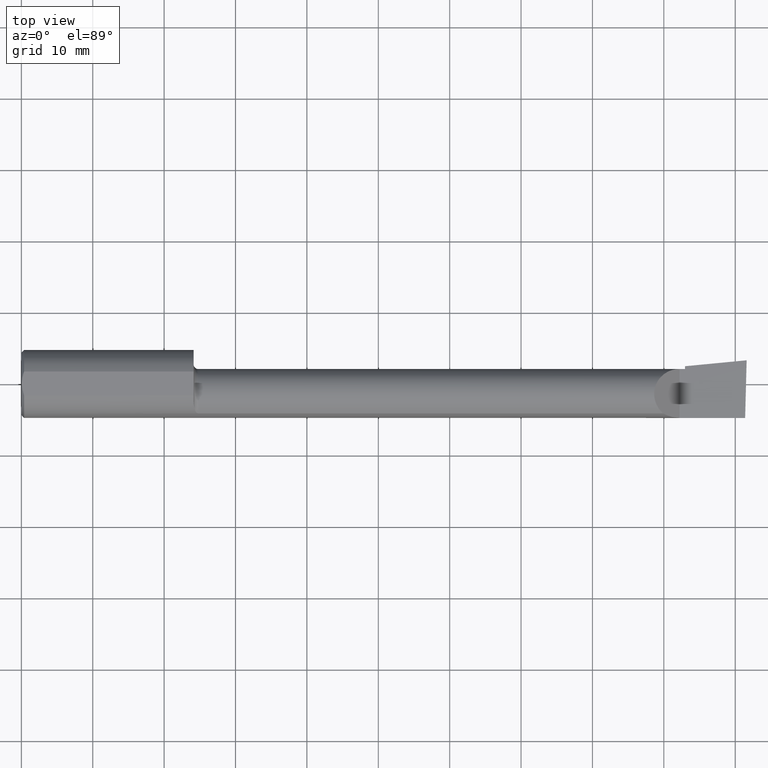
[diagram: clean part render]
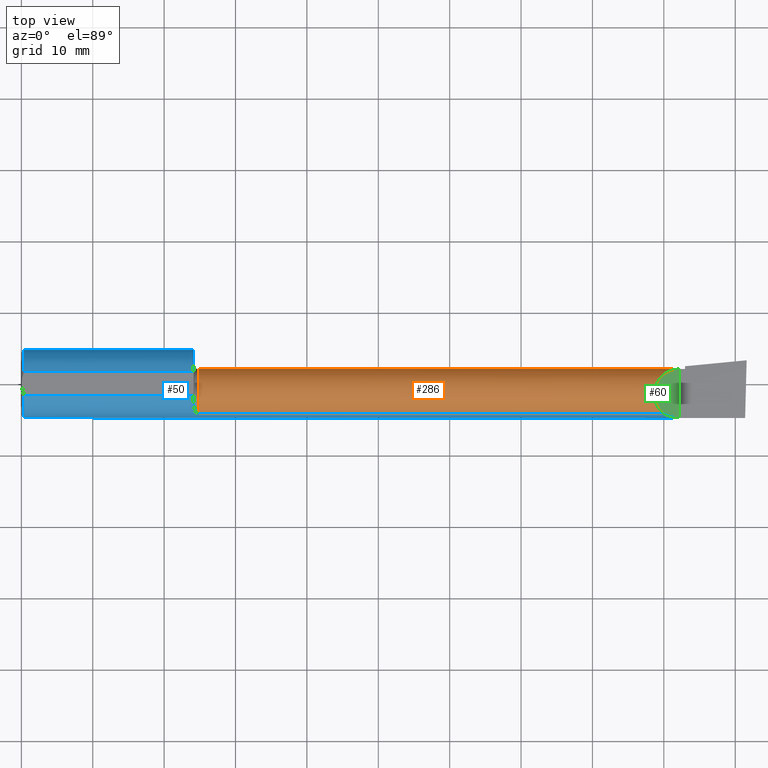
[diagram: same view with three faces highlighted in distinct colors, each labeled with its STEP entity id]
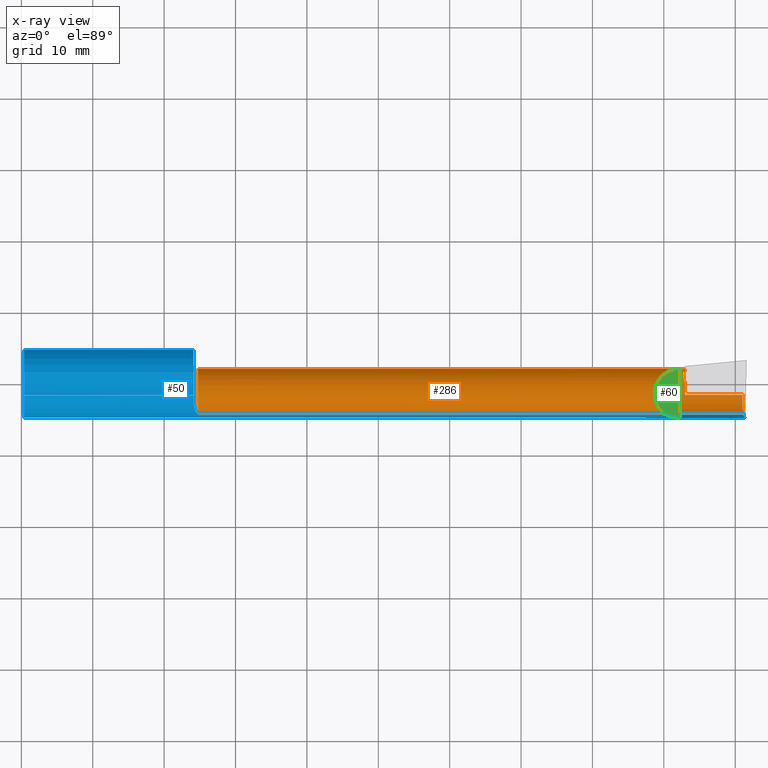
[diagram: x-ray of the same camera — body ghosted, the three highlighted faces saturated]
A machine part, top view with three faces highlighted in distinct colors.
The next image is the same camera in x-ray (body ghosted, the three faces saturated) — at least one of them is partly hidden behind the body in this view.
Their STEP definitions:

[orange] entity #286 — the highlighted cylindrical surface (edge-blend (fillet) strip) has radius 3.5573 mm, axis along (-1, -0, -0).
#5 = ORIENTED_EDGE ( 'NONE', *, *, #168, .F. ) ;
#8 = ORIENTED_EDGE ( 'NONE', *, *, #14, .T. ) ;
#14 = EDGE_CURVE ( 'NONE', #373, #452, #393, .T. ) ;
#21 = VERTEX_POINT ( 'NONE', #387 ) ;
#23 = CARTESIAN_POINT ( 'NONE',  ( 2.317499999999999893, -0.1635956445993030639, 0.09130436773856169530 ) ) ;
#26 = DIRECTION ( 'NONE',  ( -1.000000000000000000, -4.268512490100411279E-18, -0.000000000000000000 ) ) ;
#28 = CARTESIAN_POINT ( 'NONE',  ( 3.659999999999999698, -0.05739999999999999963, 0.000000000000000000 ) ) ;
#33 = CARTESIAN_POINT ( 'NONE',  ( 3.656476415630202759, 0.01361451005324055587, -0.1207110541441177021 ) ) ;
#40 = CARTESIAN_POINT ( 'NONE',  ( 3.659999999999999698, 0.08265000000000022329, 1.790477306702067193E-16 ) ) ;
#41 = CARTESIAN_POINT ( 'NONE',  ( 3.656639924654159657, 0.06539171466162838064, -0.06735725908305589815 ) ) ;
#49 = VERTEX_POINT ( 'NONE', #40 ) ;
#52 = CARTESIAN_POINT ( 'NONE',  ( 2.317499999999999893, -0.1635956445993030639, -0.09130436773856169530 ) ) ;
#54 = AXIS2_PLACEMENT_3D ( 'NONE', #631, #336, #234 ) ;
#66 = DIRECTION ( 'NONE',  ( 1.000000000000000000, 4.268512490100411279E-18, 0.000000000000000000 ) ) ;
#75 = CARTESIAN_POINT ( 'NONE',  ( 0.000000000000000000, -0.05740000000000001351, 0.000000000000000000 ) ) ;
#82 = CARTESIAN_POINT ( 'NONE',  ( 3.977925907309857845, -0.1365595166907235813, -0.1227499502647107499 ) ) ;
#101 = VERTEX_POINT ( 'NONE', #346 ) ;
#103 = EDGE_CURVE ( 'NONE', #118, #564, #325, .T. ) ;
#108 = VERTEX_POINT ( 'NONE', #183 ) ;
#113 =( BOUNDED_CURVE ( )  B_SPLINE_CURVE ( 3, ( #635, #385, #188, #585 ),
 .UNSPECIFIED., .F., .F. ) 
 B_SPLINE_CURVE_WITH_KNOTS ( ( 4, 4 ),
 ( 0.4889314207010929114, 1.042347087928814364 ),
 .UNSPECIFIED. ) 
 CURVE ( )  GEOMETRIC_REPRESENTATION_ITEM ( )  RATIONAL_B_SPLINE_CURVE ( ( 1.000000000000000000, 0.9746400248777661313, 0.9746400248777661313, 1.000000000000000000 ) ) 
 REPRESENTATION_ITEM ( '' )  );
#118 = VERTEX_POINT ( 'NONE', #381 ) ;
#124 = EDGE_CURVE ( 'NONE', #470, #637, #551, .T. ) ;
#126 = FACE_OUTER_BOUND ( 'NONE', #360, .T. ) ;
#132 = CARTESIAN_POINT ( 'NONE',  ( 3.977873865042411250, -0.05739999999999999963, -0.1400500000000000633 ) ) ;
#133 = EDGE_CURVE ( 'NONE', #21, #101, #113, .T. ) ;
#137 =( BOUNDED_CURVE ( )  B_SPLINE_CURVE ( 3, ( #616, #167, #186, #525 ),
 .UNSPECIFIED., .F., .F. ) 
 B_SPLINE_CURVE_WITH_KNOTS ( ( 4, 4 ),
 ( 5.422530673488459740, 7.853981633974483678 ),
 .UNSPECIFIED. ) 
 CURVE ( )  GEOMETRIC_REPRESENTATION_ITEM ( )  RATIONAL_B_SPLINE_CURVE ( ( 1.000000000000000000, 0.5651045289226863666, 0.5651045289226863666, 1.000000000000000000 ) ) 
 REPRESENTATION_ITEM ( '' )  );
#138 = CARTESIAN_POINT ( 'NONE',  ( -5.978051742385467392E-19, 0.08264999999999995961, 1.790477306702064235E-16 ) ) ;
#143 = EDGE_CURVE ( 'NONE', #164, #49, #435, .T. ) ;
#146 = CARTESIAN_POINT ( 'NONE',  ( 3.658254417281639803, 0.01401537333401174125, -0.1204743278970654558 ) ) ;
#150 = ORIENTED_EDGE ( 'NONE', *, *, #398, .F. ) ;
#154 = LINE ( 'NONE', #52, #312 ) ;
#164 = VERTEX_POINT ( 'NONE', #197 ) ;
#167 = CARTESIAN_POINT ( 'NONE',  ( 3.421229036482944075, -0.06260079402492414735, 0.2087709635170538203 ) ) ;
#168 = EDGE_CURVE ( 'NONE', #637, #452, #497, .T. ) ;
#172 = ORIENTED_EDGE ( 'NONE', *, *, #552, .T. ) ;
#183 = CARTESIAN_POINT ( 'NONE',  ( 3.538695632261437130, -0.1635956445993028974, 0.09130436773856195898 ) ) ;
#186 = CARTESIAN_POINT ( 'NONE',  ( 3.475085956200449022, 0.08265000000000011227, 0.1549140437995492614 ) ) ;
#188 = CARTESIAN_POINT ( 'NONE',  ( 3.652489847161463743, 0.03581309036639281074, -0.1077507289917615102 ) ) ;
#197 = CARTESIAN_POINT ( 'NONE',  ( 3.629999999999999893, 0.08264999999999983471, -1.383850883036508279E-16 ) ) ;
#216 = DIRECTION ( 'NONE',  ( -1.000000000000000000, -4.268512490100411279E-18, -0.000000000000000000 ) ) ;
#234 = DIRECTION ( 'NONE',  ( 0.000000000000000000, -1.000000000000000000, 0.000000000000000000 ) ) ;
#239 = VECTOR ( 'NONE', #66, 39.37007874015748143 ) ;
#245 = CARTESIAN_POINT ( 'NONE',  ( 4.000000000000000000, -0.05739999999999999963, -0.1400500000000000633 ) ) ;
#253 = ORIENTED_EDGE ( 'NONE', *, *, #103, .F. ) ;
#254 = DIRECTION ( 'NONE',  ( -1.000000000000000000, -4.268512490100411279E-18, -0.000000000000000000 ) ) ;
#257 = VECTOR ( 'NONE', #533, 39.37007874015748143 ) ;
#286 = ADVANCED_FACE ( 'NONE', ( #126 ), #574, .T. ) ;
#299 = ORIENTED_EDGE ( 'NONE', *, *, #124, .F. ) ;
#312 = VECTOR ( 'NONE', #254, 39.37007874015748143 ) ;
#318 = ORIENTED_EDGE ( 'NONE', *, *, #337, .F. ) ;
#325 = CIRCLE ( 'NONE', #54, 0.1400499999999997580 ) ;
#326 = ORIENTED_EDGE ( 'NONE', *, *, #646, .T. ) ;
#336 = DIRECTION ( 'NONE',  ( -1.000000000000000000, -4.268512490100411279E-18, -0.000000000000000000 ) ) ;
#337 = EDGE_CURVE ( 'NONE', #373, #101, #430, .T. ) ;
#340 = CARTESIAN_POINT ( 'NONE',  ( 3.977873865042411250, -0.05739999999999999963, -0.1400500000000000633 ) ) ;
#346 = CARTESIAN_POINT ( 'NONE',  ( 3.654666039249973686, 0.01321247140458298164, -0.1209457786867197265 ) ) ;
#360 = EDGE_LOOP ( 'NONE', ( #299, #172, #253, #326, #440, #624, #369, #150, #609, #318, #8, #5 ) ) ;
#361 = DIRECTION ( 'NONE',  ( 0.000000000000000000, -1.000000000000000000, 0.000000000000000000 ) ) ;
#362 = DIRECTION ( 'NONE',  ( -1.000000000000000000, -4.268512490100411279E-18, -0.000000000000000000 ) ) ;
#369 = ORIENTED_EDGE ( 'NONE', *, *, #586, .T. ) ;
#371 = LINE ( 'NONE', #23, #239 ) ;
#373 = VERTEX_POINT ( 'NONE', #643 ) ;
#381 = CARTESIAN_POINT ( 'NONE',  ( 0.9749999999999999778, -0.1635956445993035635, 0.09130436773856073773 ) ) ;
#385 = CARTESIAN_POINT ( 'NONE',  ( 3.650743536083989937, 0.05394922433140200008, -0.08888335082963770561 ) ) ;
#386 = CARTESIAN_POINT ( 'NONE',  ( 3.654666039249973686, 0.01321247140458298164, -0.1209457786867197265 ) ) ;
#387 = CARTESIAN_POINT ( 'NONE',  ( 3.649559965233994507, 0.06624107758111226485, -0.06577907292278796503 ) ) ;
#393 = CIRCLE ( 'NONE', #487, 0.1400500000000002299 ) ;
#394 = DIRECTION ( 'NONE',  ( -1.000000000000000000, 5.691349986800549142E-18, -0.000000000000000000 ) ) ;
#398 = EDGE_CURVE ( 'NONE', #21, #603, #561, .T. ) ;
#406 = CARTESIAN_POINT ( 'NONE',  ( 0.9749999999999999778, -0.1635956445993038966, -0.09130436773856034915 ) ) ;
#410 = CARTESIAN_POINT ( 'NONE',  ( 3.659999999999999698, -0.05739999999999999963, 0.000000000000000000 ) ) ;
#427 = CARTESIAN_POINT ( 'NONE',  ( 3.659999999999999698, -0.05739999999999999963, -0.1400500000000000633 ) ) ;
#430 =( BOUNDED_CURVE ( )  B_SPLINE_CURVE ( 3, ( #439, #146, #33, #386 ),
 .UNSPECIFIED., .F., .F. ) 
 B_SPLINE_CURVE_WITH_KNOTS ( ( 4, 4 ),
 ( 3.403716554974005160, 3.413688882750589570 ),
 .UNSPECIFIED. ) 
 CURVE ( )  GEOMETRIC_REPRESENTATION_ITEM ( )  RATIONAL_B_SPLINE_CURVE ( ( 1.000000000000000000, 0.9999917127403961103, 0.9999917127403961103, 1.000000000000000000 ) ) 
 REPRESENTATION_ITEM ( '' )  );
#435 = LINE ( 'NONE', #138, #257 ) ;
#439 = CARTESIAN_POINT ( 'NONE',  ( 3.659999999999999698, 0.01441505128072236540, -0.1202356058309986681 ) ) ;
#440 = ORIENTED_EDGE ( 'NONE', *, *, #604, .T. ) ;
#452 = VERTEX_POINT ( 'NONE', #427 ) ;
#462 = CARTESIAN_POINT ( 'NONE',  ( 3.981080296960509468, -0.1635956445993030639, -0.09130436773856169530 ) ) ;
#468 = DIRECTION ( 'NONE',  ( 4.268512490100411279E-18, -1.000000000000000000, 0.000000000000000000 ) ) ;
#470 = VERTEX_POINT ( 'NONE', #462 ) ;
#480 = CARTESIAN_POINT ( 'NONE',  ( 3.649559965233994507, 0.06624107758111226485, -0.06577907292278796503 ) ) ;
#487 = AXIS2_PLACEMENT_3D ( 'NONE', #28, #362, #559 ) ;
#491 = CARTESIAN_POINT ( 'NONE',  ( 3.659999999999999698, 0.06495571228477976800, -0.06814016562413263700 ) ) ;
#497 = LINE ( 'NONE', #245, #623 ) ;
#525 = CARTESIAN_POINT ( 'NONE',  ( 3.629999999999999893, 0.08264999999999983471, -1.383850883036508279E-16 ) ) ;
#533 = DIRECTION ( 'NONE',  ( 1.000000000000000000, 4.268512490100411279E-18, 0.000000000000000000 ) ) ;
#551 =( BOUNDED_CURVE ( )  B_SPLINE_CURVE ( 3, ( #581, #82, #577, #340 ),
 .UNSPECIFIED., .F., .F. ) 
 B_SPLINE_CURVE_WITH_KNOTS ( ( 4, 4 ),
 ( 5.632580117768153372, 6.493234751459281640 ),
 .UNSPECIFIED. ) 
 CURVE ( )  GEOMETRIC_REPRESENTATION_ITEM ( )  RATIONAL_B_SPLINE_CURVE ( ( 1.000000000000000000, 0.9392195014330942948, 0.9392195014330942948, 1.000000000000000000 ) ) 
 REPRESENTATION_ITEM ( '' )  );
#552 = EDGE_CURVE ( 'NONE', #470, #564, #154, .T. ) ;
#559 = DIRECTION ( 'NONE',  ( 0.000000000000000000, -1.000000000000000000, 0.000000000000000000 ) ) ;
#561 =( BOUNDED_CURVE ( )  B_SPLINE_CURVE ( 3, ( #480, #582, #41, #491 ),
 .UNSPECIFIED., .F., .F. ) 
 B_SPLINE_CURVE_WITH_KNOTS ( ( 4, 4 ),
 ( 2.860273215522870505, 2.879468752205585513 ),
 .UNSPECIFIED. ) 
 CURVE ( )  GEOMETRIC_REPRESENTATION_ITEM ( )  RATIONAL_B_SPLINE_CURVE ( ( 1.000000000000000000, 0.9999692945166647196, 0.9999692945166647196, 1.000000000000000000 ) ) 
 REPRESENTATION_ITEM ( '' )  );
#562 = CARTESIAN_POINT ( 'NONE',  ( 3.659999999999999698, 0.06495571228477976800, -0.06814016562413263700 ) ) ;
#564 = VERTEX_POINT ( 'NONE', #406 ) ;
#571 = CIRCLE ( 'NONE', #612, 0.1400500000000002299 ) ;
#574 = CYLINDRICAL_SURFACE ( 'NONE', #647, 0.1400499999999999801 ) ;
#577 = CARTESIAN_POINT ( 'NONE',  ( 3.976787929832031221, -0.09887019258091184204, -0.1400500000000000078 ) ) ;
#581 = CARTESIAN_POINT ( 'NONE',  ( 3.981080296960509468, -0.1635956445993030639, -0.09130436773856169530 ) ) ;
#582 = CARTESIAN_POINT ( 'NONE',  ( 3.653159806206771609, 0.06582018291673073784, -0.06657020401570139245 ) ) ;
#585 = CARTESIAN_POINT ( 'NONE',  ( 3.654666039249973686, 0.01321247140458298164, -0.1209457786867197265 ) ) ;
#586 = EDGE_CURVE ( 'NONE', #49, #603, #571, .T. ) ;
#603 = VERTEX_POINT ( 'NONE', #562 ) ;
#604 = EDGE_CURVE ( 'NONE', #108, #164, #137, .T. ) ;
#609 = ORIENTED_EDGE ( 'NONE', *, *, #133, .T. ) ;
#612 = AXIS2_PLACEMENT_3D ( 'NONE', #410, #216, #361 ) ;
#616 = CARTESIAN_POINT ( 'NONE',  ( 3.538695632261437130, -0.1635956445993028974, 0.09130436773856195898 ) ) ;
#623 = VECTOR ( 'NONE', #394, 39.37007874015748143 ) ;
#624 = ORIENTED_EDGE ( 'NONE', *, *, #143, .T. ) ;
#631 = CARTESIAN_POINT ( 'NONE',  ( 0.9749999999999999778, -0.05740000000000001351, 0.000000000000000000 ) ) ;
#635 = CARTESIAN_POINT ( 'NONE',  ( 3.649559965233994507, 0.06624107758111226485, -0.06577907292278796503 ) ) ;
#637 = VERTEX_POINT ( 'NONE', #132 ) ;
#643 = CARTESIAN_POINT ( 'NONE',  ( 3.659999999999999698, 0.01441505128072236540, -0.1202356058309986681 ) ) ;
#646 = EDGE_CURVE ( 'NONE', #118, #108, #371, .T. ) ;
#647 = AXIS2_PLACEMENT_3D ( 'NONE', #75, #26, #468 ) ;

[blue] entity #50 — the highlighted cylindrical surface (edge-blend (fillet) strip) has radius 4.7587 mm, axis along (-1, -0, -0).
#3 = DIRECTION ( 'NONE',  ( -1.000000000000000000, -0.000000000000000000, -0.000000000000000000 ) ) ;
#9 = CARTESIAN_POINT ( 'NONE',  ( 3.981080296960509468, -0.1635956445993030639, -0.09130436773856169530 ) ) ;
#13 = CARTESIAN_POINT ( 'NONE',  ( 3.597861799102314517, -0.1873500000000000165, 0.03213820089768516797 ) ) ;
#20 = VECTOR ( 'NONE', #203, 39.37007874015748143 ) ;
#23 = CARTESIAN_POINT ( 'NONE',  ( 2.317499999999999893, -0.1635956445993030639, 0.09130436773856169530 ) ) ;
#36 = CARTESIAN_POINT ( 'NONE',  ( 0.9637641080978833763, -0.1573043405450777754, 0.1018329020719625500 ) ) ;
#50 = ADVANCED_FACE ( 'NONE', ( #288 ), #231, .T. ) ;
#51 = VERTEX_POINT ( 'NONE', #628 ) ;
#52 = CARTESIAN_POINT ( 'NONE',  ( 2.317499999999999893, -0.1635956445993030639, -0.09130436773856169530 ) ) ;
#62 =( BOUNDED_CURVE ( )  B_SPLINE_CURVE ( 3, ( #9, #205, #163, #107 ),
 .UNSPECIFIED., .F., .T. ) 
 B_SPLINE_CURVE_WITH_KNOTS ( ( 4, 4 ),
 ( 0.8516985021657665911, 1.360746882515200262 ),
 .UNSPECIFIED. ) 
 CURVE ( )  GEOMETRIC_REPRESENTATION_ITEM ( )  RATIONAL_B_SPLINE_CURVE ( ( 1.000000000000000000, 0.9785221379938657815, 0.9785221379938657815, 1.000000000000000000 ) ) 
 REPRESENTATION_ITEM ( '' )  );
#64 = VERTEX_POINT ( 'NONE', #441 ) ;
#65 = DIRECTION ( 'NONE',  ( 0.000000000000000000, 1.000000000000000000, 0.000000000000000000 ) ) ;
#66 = DIRECTION ( 'NONE',  ( 1.000000000000000000, 4.268512490100411279E-18, 0.000000000000000000 ) ) ;
#83 = VECTOR ( 'NONE', #3, 39.37007874015748143 ) ;
#86 = CARTESIAN_POINT ( 'NONE',  ( 3.629999999999999893, -0.1873499999999999888, -1.383850883036508279E-16 ) ) ;
#92 = DIRECTION ( 'NONE',  ( -1.000000000000000000, -0.000000000000000000, -0.000000000000000000 ) ) ;
#96 = LINE ( 'NONE', #432, #191 ) ;
#107 = CARTESIAN_POINT ( 'NONE',  ( 3.991672876940992154, -0.1873499999999999888, -1.700367819150454743E-16 ) ) ;
#108 = VERTEX_POINT ( 'NONE', #183 ) ;
#110 = CARTESIAN_POINT ( 'NONE',  ( 1.565719721143680372E-32, -0.1873499999999999610, 1.790477306702064235E-16 ) ) ;
#112 = AXIS2_PLACEMENT_3D ( 'NONE', #148, #513, #176 ) ;
#114 = CARTESIAN_POINT ( 'NONE',  ( 0.9499999999999999556, 0.06597272163553663527, 0.1753499999999999781 ) ) ;
#118 = VERTEX_POINT ( 'NONE', #381 ) ;
#120 = CARTESIAN_POINT ( 'NONE',  ( 0.9530417279495579930, -0.1311116946065058741, -0.1340922927843364310 ) ) ;
#134 = CARTESIAN_POINT ( 'NONE',  ( 0.000000000000000000, 0.000000000000000000, 0.000000000000000000 ) ) ;
#148 = CARTESIAN_POINT ( 'NONE',  ( 0.01499999999999999424, 0.000000000000000000, 0.000000000000000000 ) ) ;
#149 = VERTEX_POINT ( 'NONE', #86 ) ;
#154 = LINE ( 'NONE', #52, #312 ) ;
#160 = ORIENTED_EDGE ( 'NONE', *, *, #181, .T. ) ;
#161 = CARTESIAN_POINT ( 'NONE',  ( 0.01499999999999999424, 0.000000000000000000, 0.000000000000000000 ) ) ;
#163 = CARTESIAN_POINT ( 'NONE',  ( 3.987725449370725261, -0.1873499999999999610, -0.03213820089768520960 ) ) ;
#165 = CARTESIAN_POINT ( 'NONE',  ( 0.01499999999999997863, -0.06597272163553657975, 0.1753499999999999781 ) ) ;
#170 = CARTESIAN_POINT ( 'NONE',  ( 0.9519033967903075544, -0.1248165254919067768, -0.1399798634953940968 ) ) ;
#174 = CARTESIAN_POINT ( 'NONE',  ( 3.538695632261437130, -0.1635956445993028974, 0.09130436773856195898 ) ) ;
#176 = DIRECTION ( 'NONE',  ( 0.000000000000000000, 0.000000000000000000, 1.000000000000000000 ) ) ;
#180 =( BOUNDED_CURVE ( )  B_SPLINE_CURVE ( 3, ( #351, #13, #610, #174 ),
 .UNSPECIFIED., .F., .F. ) 
 B_SPLINE_CURVE_WITH_KNOTS ( ( 4, 4 ),
 ( 4.712388980384689674, 5.221437360734126010 ),
 .UNSPECIFIED. ) 
 CURVE ( )  GEOMETRIC_REPRESENTATION_ITEM ( )  RATIONAL_B_SPLINE_CURVE ( ( 1.000000000000000000, 0.9785221379938656705, 0.9785221379938656705, 1.000000000000000000 ) ) 
 REPRESENTATION_ITEM ( '' )  );
#181 = EDGE_CURVE ( 'NONE', #149, #108, #180, .T. ) ;
#183 = CARTESIAN_POINT ( 'NONE',  ( 3.538695632261437130, -0.1635956445993028974, 0.09130436773856195898 ) ) ;
#184 = CARTESIAN_POINT ( 'NONE',  ( 0.9668559945294943336, -0.1603175578889975417, 0.09696363432848344177 ) ) ;
#191 = VECTOR ( 'NONE', #92, 39.37007874015748143 ) ;
#192 = EDGE_CURVE ( 'NONE', #472, #460, #347, .T. ) ;
#193 = CARTESIAN_POINT ( 'NONE',  ( 0.9500000000000002887, -0.1045012500212959133, 0.1557348687830031331 ) ) ;
#198 = AXIS2_PLACEMENT_3D ( 'NONE', #161, #408, #560 ) ;
#201 = ORIENTED_EDGE ( 'NONE', *, *, #350, .F. ) ;
#203 = DIRECTION ( 'NONE',  ( 1.000000000000000000, 0.000000000000000000, 0.000000000000000000 ) ) ;
#205 = CARTESIAN_POINT ( 'NONE',  ( 3.984117089522338340, -0.1792580844883770452, -0.06324101202936138755 ) ) ;
#206 = VERTEX_POINT ( 'NONE', #214 ) ;
#209 = ORIENTED_EDGE ( 'NONE', *, *, #646, .F. ) ;
#210 = CARTESIAN_POINT ( 'NONE',  ( 0.9580682074421705829, -0.1478915270140216676, -0.1153063024254916413 ) ) ;
#214 = CARTESIAN_POINT ( 'NONE',  ( 0.9499999999999999556, -0.09715400696864176511, -0.1601908905959920915 ) ) ;
#215 = EDGE_CURVE ( 'NONE', #64, #222, #529, .T. ) ;
#218 = CARTESIAN_POINT ( 'NONE',  ( 0.9727799353194340748, -0.1635956445993037855, -0.09130436773856050181 ) ) ;
#222 = VERTEX_POINT ( 'NONE', #625 ) ;
#227 = AXIS2_PLACEMENT_3D ( 'NONE', #370, #363, #65 ) ;
#228 = VERTEX_POINT ( 'NONE', #165 ) ;
#231 = CYLINDRICAL_SURFACE ( 'NONE', #547, 0.1873499999999999888 ) ;
#232 = CARTESIAN_POINT ( 'NONE',  ( 0.9728009145006646374, -0.1635956445997555908, 0.09130436773775127413 ) ) ;
#237 = EDGE_CURVE ( 'NONE', #460, #228, #313, .T. ) ;
#239 = VECTOR ( 'NONE', #66, 39.37007874015748143 ) ;
#241 = ORIENTED_EDGE ( 'NONE', *, *, #237, .F. ) ;
#247 = ORIENTED_EDGE ( 'NONE', *, *, #319, .F. ) ;
#254 = DIRECTION ( 'NONE',  ( -1.000000000000000000, -4.268512490100411279E-18, -0.000000000000000000 ) ) ;
#262 = LINE ( 'NONE', #110, #83 ) ;
#264 = ORIENTED_EDGE ( 'NONE', *, *, #526, .T. ) ;
#267 = ORIENTED_EDGE ( 'NONE', *, *, #192, .F. ) ;
#270 = CARTESIAN_POINT ( 'NONE',  ( 0.9749999999999999778, -0.1635956445993038966, -0.09130436773856034915 ) ) ;
#276 = CARTESIAN_POINT ( 'NONE',  ( 0.9668149093790889825, -0.1602818635245164824, -0.09702252612905185036 ) ) ;
#279 = CIRCLE ( 'NONE', #459, 0.1873499999999999888 ) ;
#288 = FACE_OUTER_BOUND ( 'NONE', #492, .T. ) ;
#289 = DIRECTION ( 'NONE',  ( 1.000000000000000000, 4.268512490100411279E-18, 0.000000000000000000 ) ) ;
#301 = ORIENTED_EDGE ( 'NONE', *, *, #506, .T. ) ;
#312 = VECTOR ( 'NONE', #254, 39.37007874015748143 ) ;
#313 = CIRCLE ( 'NONE', #198, 0.1873499999999999888 ) ;
#314 = CARTESIAN_POINT ( 'NONE',  ( 0.000000000000000000, 0.06597272163553663527, 0.1753499999999999781 ) ) ;
#319 = EDGE_CURVE ( 'NONE', #564, #206, #496, .T. ) ;
#320 = CARTESIAN_POINT ( 'NONE',  ( 0.9708814992308697489, -0.1628722075910997991, -0.09260290410947742690 ) ) ;
#324 = CARTESIAN_POINT ( 'NONE',  ( 0.9503844419023952383, -0.1115101367984845104, -0.1507946173152219793 ) ) ;
#333 = CARTESIAN_POINT ( 'NONE',  ( 0.9561423219567504184, -0.1426151417460937709, 0.1217894822571224528 ) ) ;
#341 = CARTESIAN_POINT ( 'NONE',  ( 0.9503837281337299547, -0.1114837668894157890, 0.1508119329971092104 ) ) ;
#347 = CIRCLE ( 'NONE', #112, 0.1873499999999999888 ) ;
#348 = CARTESIAN_POINT ( 'NONE',  ( 0.9518917549365452091, -0.1247344934163574087, 0.1400506178720495876 ) ) ;
#350 = EDGE_CURVE ( 'NONE', #206, #554, #279, .T. ) ;
#351 = CARTESIAN_POINT ( 'NONE',  ( 3.629999999999999893, -0.1873499999999999888, -1.383850883036508279E-16 ) ) ;
#355 = ORIENTED_EDGE ( 'NONE', *, *, #552, .F. ) ;
#356 = EDGE_CURVE ( 'NONE', #222, #118, #597, .T. ) ;
#363 = DIRECTION ( 'NONE',  ( 1.000000000000000000, 4.268512490100411279E-18, 0.000000000000000000 ) ) ;
#365 = EDGE_CURVE ( 'NONE', #64, #228, #96, .T. ) ;
#366 = ORIENTED_EDGE ( 'NONE', *, *, #489, .T. ) ;
#370 = CARTESIAN_POINT ( 'NONE',  ( 0.9499999999999999556, 0.000000000000000000, 0.000000000000000000 ) ) ;
#371 = LINE ( 'NONE', #23, #239 ) ;
#381 = CARTESIAN_POINT ( 'NONE',  ( 0.9749999999999999778, -0.1635956445993035635, 0.09130436773856073773 ) ) ;
#382 = CARTESIAN_POINT ( 'NONE',  ( 0.9499999999999999556, -0.09715400696864176511, 0.1601908905959920915 ) ) ;
#384 = CARTESIAN_POINT ( 'NONE',  ( 0.9580729541431403096, -0.1479074971576206099, 0.1152872342625222007 ) ) ;
#406 = CARTESIAN_POINT ( 'NONE',  ( 0.9749999999999999778, -0.1635956445993038966, -0.09130436773856034915 ) ) ;
#408 = DIRECTION ( 'NONE',  ( -1.000000000000000000, -0.000000000000000000, -0.000000000000000000 ) ) ;
#417 = CARTESIAN_POINT ( 'NONE',  ( 0.9679759419021530809, -0.1612443294219086665, -0.09540922431498098655 ) ) ;
#421 = CARTESIAN_POINT ( 'NONE',  ( 0.9499999999999999556, -0.09715400696864176511, -0.1601908905959920915 ) ) ;
#423 = ORIENTED_EDGE ( 'NONE', *, *, #356, .F. ) ;
#426 = DIRECTION ( 'NONE',  ( 0.000000000000000000, 0.000000000000000000, 1.000000000000000000 ) ) ;
#432 = CARTESIAN_POINT ( 'NONE',  ( 0.000000000000000000, -0.06597272163553657975, 0.1753499999999999781 ) ) ;
#441 = CARTESIAN_POINT ( 'NONE',  ( 0.9499999999999999556, -0.06597272163553666302, 0.1753499999999999781 ) ) ;
#456 = CARTESIAN_POINT ( 'NONE',  ( 0.01499999999999999424, 0.06597272163553663527, 0.1753499999999999781 ) ) ;
#459 = AXIS2_PLACEMENT_3D ( 'NONE', #632, #289, #537 ) ;
#460 = VERTEX_POINT ( 'NONE', #549 ) ;
#462 = CARTESIAN_POINT ( 'NONE',  ( 3.981080296960509468, -0.1635956445993030639, -0.09130436773856169530 ) ) ;
#470 = VERTEX_POINT ( 'NONE', #462 ) ;
#472 = VERTEX_POINT ( 'NONE', #456 ) ;
#476 = CARTESIAN_POINT ( 'NONE',  ( 0.9637431740823491078, -0.1572750258711015092, -0.1018777902325202628 ) ) ;
#483 = CARTESIAN_POINT ( 'NONE',  ( 0.9622046384587364942, -0.1550630761760529996, 0.1052254855377551673 ) ) ;
#489 = EDGE_CURVE ( 'NONE', #470, #51, #62, .T. ) ;
#492 = EDGE_LOOP ( 'NONE', ( #355, #366, #264, #160, #209, #423, #567, #498, #241, #267, #301, #201, #247 ) ) ;
#496 = B_SPLINE_CURVE_WITH_KNOTS ( 'NONE', 3,
 ( #270, #218, #320, #417, #276, #476, #568, #210, #615, #120, #170, #324, #519, #421 ),
 .UNSPECIFIED., .F., .F.,
 ( 4, 2, 2, 2, 2, 2, 4 ),
 ( 1.968340875534775581E-07, 0.0001667114270246312555, 0.0003332260199617090410, 0.0006662552058358596789, 0.001332313577584163123, 0.001998371949332466459, 0.002664430321080769794 ),
 .UNSPECIFIED. ) ;
#498 = ORIENTED_EDGE ( 'NONE', *, *, #365, .T. ) ;
#506 = EDGE_CURVE ( 'NONE', #472, #554, #508, .T. ) ;
#508 = LINE ( 'NONE', #314, #20 ) ;
#513 = DIRECTION ( 'NONE',  ( -1.000000000000000000, -0.000000000000000000, -0.000000000000000000 ) ) ;
#519 = CARTESIAN_POINT ( 'NONE',  ( 0.9499999999999998446, -0.1045082199249687122, -0.1557306416133589222 ) ) ;
#526 = EDGE_CURVE ( 'NONE', #51, #149, #262, .T. ) ;
#529 = CIRCLE ( 'NONE', #227, 0.1873499999999999888 ) ;
#531 = DIRECTION ( 'NONE',  ( -1.000000000000000000, -0.000000000000000000, -0.000000000000000000 ) ) ;
#537 = DIRECTION ( 'NONE',  ( 0.000000000000000000, 1.000000000000000000, 0.000000000000000000 ) ) ;
#540 = CARTESIAN_POINT ( 'NONE',  ( 0.9709038625689692115, -0.1628809688430628011, 0.09258733509388367144 ) ) ;
#547 = AXIS2_PLACEMENT_3D ( 'NONE', #134, #531, #426 ) ;
#549 = CARTESIAN_POINT ( 'NONE',  ( 0.01499999999999999424, 0.000000000000000000, -0.1873499999999999888 ) ) ;
#552 = EDGE_CURVE ( 'NONE', #470, #564, #154, .T. ) ;
#554 = VERTEX_POINT ( 'NONE', #114 ) ;
#560 = DIRECTION ( 'NONE',  ( 0.000000000000000000, 0.000000000000000000, 1.000000000000000000 ) ) ;
#564 = VERTEX_POINT ( 'NONE', #406 ) ;
#567 = ORIENTED_EDGE ( 'NONE', *, *, #215, .F. ) ;
#568 = CARTESIAN_POINT ( 'NONE',  ( 0.9621845987149125756, -0.1550322129197702625, -0.1052705638704073687 ) ) ;
#578 = CARTESIAN_POINT ( 'NONE',  ( 0.9530259122056835563, -0.1310442973014121215, 0.1341609063345036434 ) ) ;
#587 = CARTESIAN_POINT ( 'NONE',  ( 0.9749999999999999778, -0.1635956445993035635, 0.09130436773856073773 ) ) ;
#597 = B_SPLINE_CURVE_WITH_KNOTS ( 'NONE', 3,
 ( #382, #193, #341, #348, #578, #333, #384, #483, #36, #184, #640, #540, #232, #587 ),
 .UNSPECIFIED., .F., .F.,
 ( 4, 2, 2, 2, 2, 2, 4 ),
 ( 0.0002471551878304284987, 0.0008987327522055726372, 0.001550310316580716776, 0.002201887880955860806, 0.002527676663143432929, 0.002690571054237220726, 0.002853465445331008956 ),
 .UNSPECIFIED. ) ;
#610 = CARTESIAN_POINT ( 'NONE',  ( 3.566758987970638728, -0.1792580844883770730, 0.06324101202936149857 ) ) ;
#615 = CARTESIAN_POINT ( 'NONE',  ( 0.9561458414306042153, -0.1426194794824345302, -0.1217813759115460442 ) ) ;
#625 = CARTESIAN_POINT ( 'NONE',  ( 0.9499999999999999556, -0.09715400696864176511, 0.1601908905959920915 ) ) ;
#628 = CARTESIAN_POINT ( 'NONE',  ( 3.991672876940992154, -0.1873499999999999888, -1.700367819150454743E-16 ) ) ;
#632 = CARTESIAN_POINT ( 'NONE',  ( 0.9499999999999999556, 0.000000000000000000, 0.000000000000000000 ) ) ;
#640 = CARTESIAN_POINT ( 'NONE',  ( 0.9680018598681173758, -0.1612625562479377272, 0.09537826053888064093 ) ) ;
#646 = EDGE_CURVE ( 'NONE', #118, #108, #371, .T. ) ;

[green] entity #60 — the highlighted planar face has unit normal (-0.7071, 0, -0.7071).
#13 = CARTESIAN_POINT ( 'NONE',  ( 3.597861799102314517, -0.1873500000000000165, 0.03213820089768516797 ) ) ;
#60 = ADVANCED_FACE ( 'NONE', ( #195 ), #190, .F. ) ;
#77 = DIRECTION ( 'NONE',  ( -0.7071067811865507924, 0.000000000000000000, 0.7071067811865443531 ) ) ;
#86 = CARTESIAN_POINT ( 'NONE',  ( 3.629999999999999893, -0.1873499999999999888, -1.383850883036508279E-16 ) ) ;
#108 = VERTEX_POINT ( 'NONE', #183 ) ;
#137 =( BOUNDED_CURVE ( )  B_SPLINE_CURVE ( 3, ( #616, #167, #186, #525 ),
 .UNSPECIFIED., .F., .F. ) 
 B_SPLINE_CURVE_WITH_KNOTS ( ( 4, 4 ),
 ( 5.422530673488459740, 7.853981633974483678 ),
 .UNSPECIFIED. ) 
 CURVE ( )  GEOMETRIC_REPRESENTATION_ITEM ( )  RATIONAL_B_SPLINE_CURVE ( ( 1.000000000000000000, 0.5651045289226863666, 0.5651045289226863666, 1.000000000000000000 ) ) 
 REPRESENTATION_ITEM ( '' )  );
#149 = VERTEX_POINT ( 'NONE', #86 ) ;
#153 = AXIS2_PLACEMENT_3D ( 'NONE', #238, #438, #77 ) ;
#164 = VERTEX_POINT ( 'NONE', #197 ) ;
#167 = CARTESIAN_POINT ( 'NONE',  ( 3.421229036482944075, -0.06260079402492414735, 0.2087709635170538203 ) ) ;
#174 = CARTESIAN_POINT ( 'NONE',  ( 3.538695632261437130, -0.1635956445993028974, 0.09130436773856195898 ) ) ;
#180 =( BOUNDED_CURVE ( )  B_SPLINE_CURVE ( 3, ( #351, #13, #610, #174 ),
 .UNSPECIFIED., .F., .F. ) 
 B_SPLINE_CURVE_WITH_KNOTS ( ( 4, 4 ),
 ( 4.712388980384689674, 5.221437360734126010 ),
 .UNSPECIFIED. ) 
 CURVE ( )  GEOMETRIC_REPRESENTATION_ITEM ( )  RATIONAL_B_SPLINE_CURVE ( ( 1.000000000000000000, 0.9785221379938656705, 0.9785221379938656705, 1.000000000000000000 ) ) 
 REPRESENTATION_ITEM ( '' )  );
#181 = EDGE_CURVE ( 'NONE', #149, #108, #180, .T. ) ;
#183 = CARTESIAN_POINT ( 'NONE',  ( 3.538695632261437130, -0.1635956445993028974, 0.09130436773856195898 ) ) ;
#186 = CARTESIAN_POINT ( 'NONE',  ( 3.475085956200449022, 0.08265000000000011227, 0.1549140437995492614 ) ) ;
#190 = PLANE ( 'NONE',  #153 ) ;
#195 = FACE_OUTER_BOUND ( 'NONE', #598, .T. ) ;
#197 = CARTESIAN_POINT ( 'NONE',  ( 3.629999999999999893, 0.08264999999999983471, -1.383850883036508279E-16 ) ) ;
#238 = CARTESIAN_POINT ( 'NONE',  ( 3.629999999999999893, -0.2500000000000000555, -1.383850883036508279E-16 ) ) ;
#304 = ORIENTED_EDGE ( 'NONE', *, *, #181, .F. ) ;
#334 = ORIENTED_EDGE ( 'NONE', *, *, #604, .F. ) ;
#351 = CARTESIAN_POINT ( 'NONE',  ( 3.629999999999999893, -0.1873499999999999888, -1.383850883036508279E-16 ) ) ;
#376 = CARTESIAN_POINT ( 'NONE',  ( 3.629999999999999893, -0.2500000000000000555, -1.383850883036508279E-16 ) ) ;
#414 = LINE ( 'NONE', #376, #518 ) ;
#434 = DIRECTION ( 'NONE',  ( -0.000000000000000000, 1.000000000000000000, -0.000000000000000000 ) ) ;
#438 = DIRECTION ( 'NONE',  ( -0.7071067811865443531, 0.000000000000000000, -0.7071067811865507924 ) ) ;
#518 = VECTOR ( 'NONE', #434, 39.37007874015748143 ) ;
#525 = CARTESIAN_POINT ( 'NONE',  ( 3.629999999999999893, 0.08264999999999983471, -1.383850883036508279E-16 ) ) ;
#598 = EDGE_LOOP ( 'NONE', ( #334, #304, #613 ) ) ;
#604 = EDGE_CURVE ( 'NONE', #108, #164, #137, .T. ) ;
#610 = CARTESIAN_POINT ( 'NONE',  ( 3.566758987970638728, -0.1792580844883770730, 0.06324101202936149857 ) ) ;
#613 = ORIENTED_EDGE ( 'NONE', *, *, #617, .T. ) ;
#616 = CARTESIAN_POINT ( 'NONE',  ( 3.538695632261437130, -0.1635956445993028974, 0.09130436773856195898 ) ) ;
#617 = EDGE_CURVE ( 'NONE', #149, #164, #414, .T. ) ;